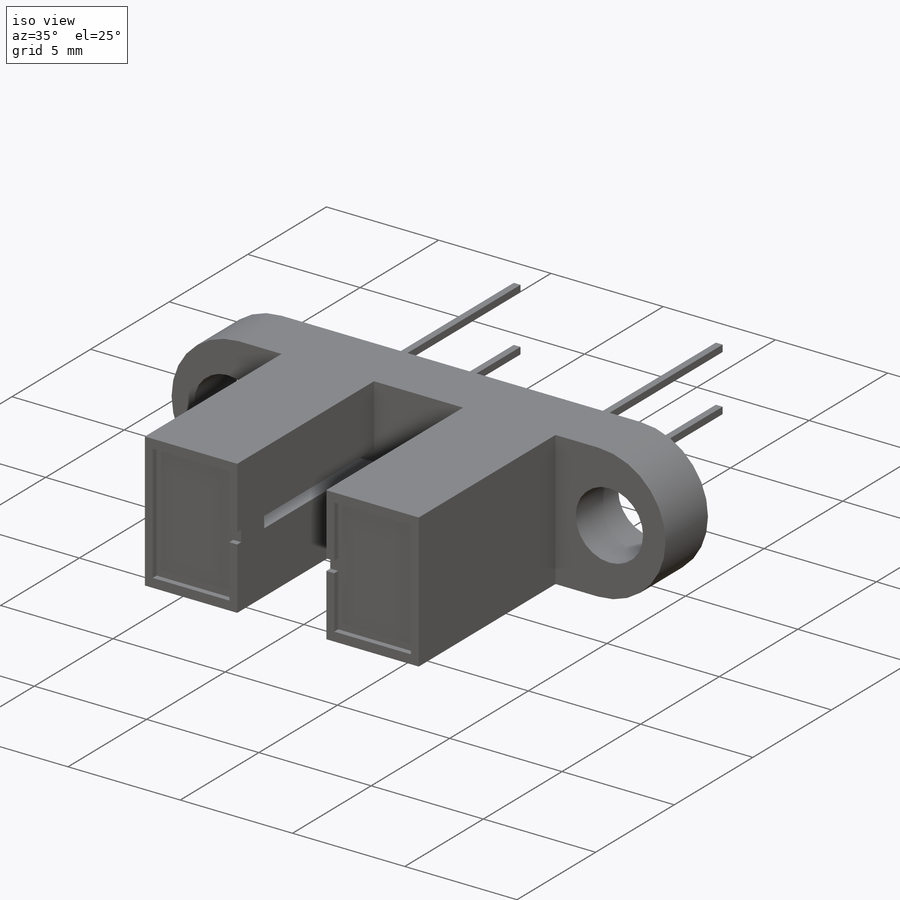
[diagram: iso view]
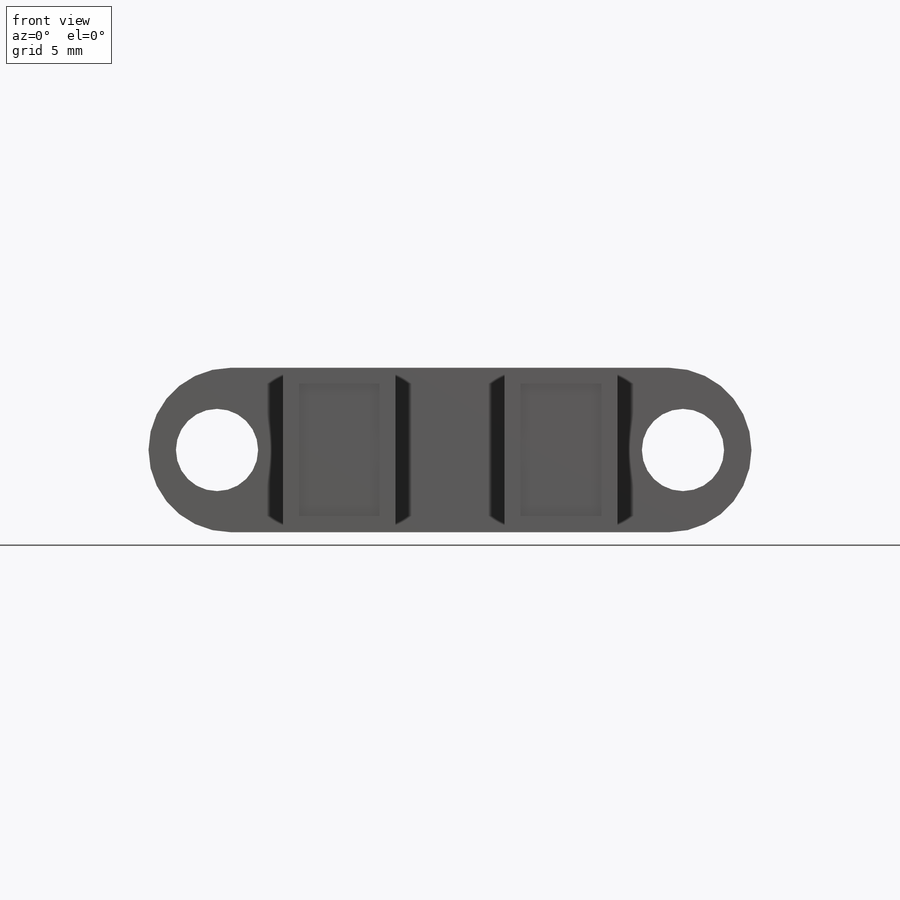
[diagram: front view]
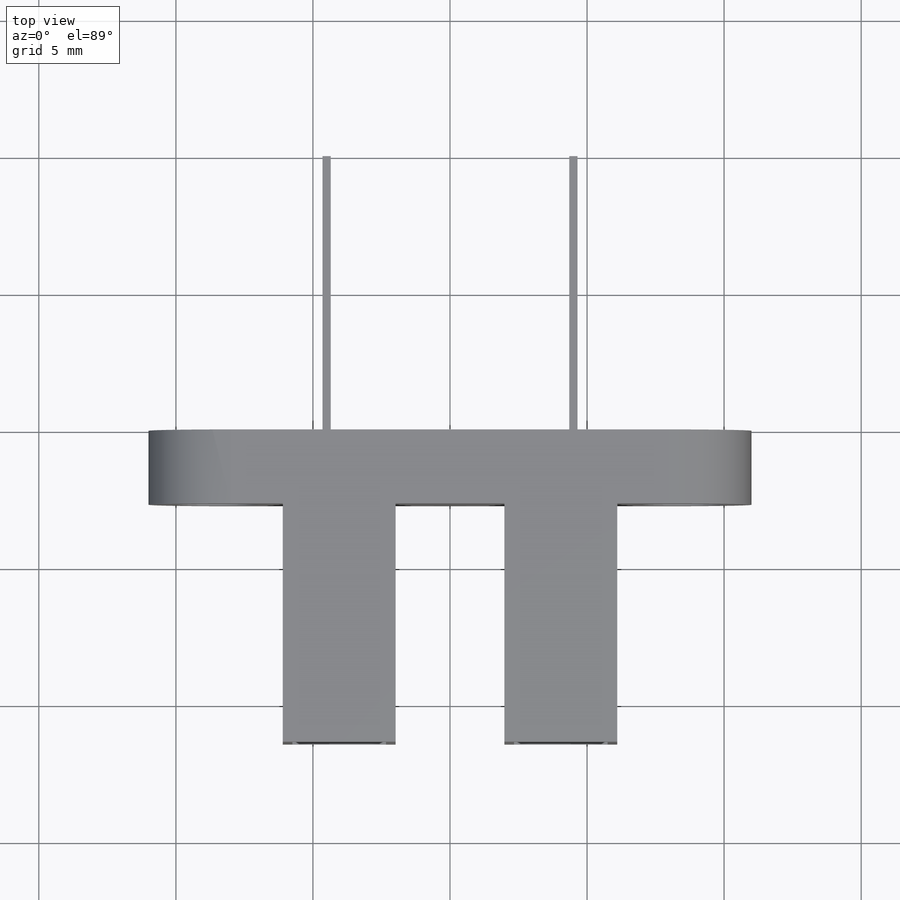
[diagram: top view]
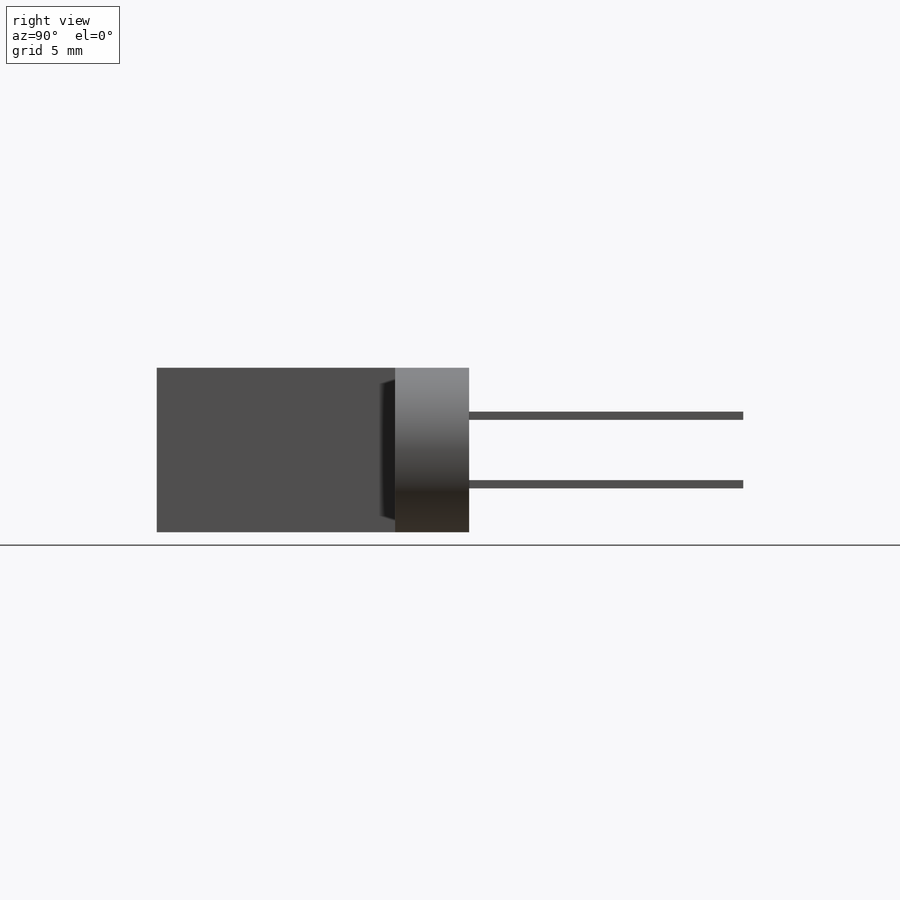
[diagram: right view]
SOLIDWORKS PART (.sldprt)
format: sldprt  version: not decoded by parser v0  size: 324,096 bytes
history: native  units: mm
features: sketch x7, cut_extrude x4, extrude x3, mirror x2, material x1, pattern_linear x1 (+13 scaffold rows collapsed)
feature tree (31):
  scaffold x13  (default folders/planes/origin — collapsed)
  material  "Material <not specified>"
  sketch  "Sketch1"  dims[c1.D2=~4.661538mm c1.D1=17.0mm c2.D2=22.0mm c2.D1=6.0mm]
  extrude  "Boss-Extrude1"  Depth=2.7mm
  sketch  "Sketch2"  dims[D1=3.0mm D2=17.0mm]
  cut_extrude  "Cut-Extrude1"  [1 undecoded]
  sketch  "Sketch3"  dims[c1.D1=4.0mm c1.D2=12.2mm c2.D1=~3.96875mm]
  extrude  "Boss-Extrude2"  Depth=8.7mm
  sketch  "Sketch4"  dims[D1=3.0mm D2=12.0mm]
  cut_extrude  "Cut-Extrude2"  Depth=2mm
  sketch  "Sketch5"  dims[c1.D1=0.4mm c1.D2=5.2mm c1.D3=5.2mm c2.D2=0.35mm c2.D3=0.35mm c2.D4=0.4mm c2.D5=0.5mm c2.D1=0.4mm]
  cut_extrude  "Cut-Extrude3"  Depth=0.25mm
  mirror  "Mirror1"
  sketch  "Sketch6"  dims[D1=0.3mm D2=4.5mm D3=1.25mm]
  extrude  "Boss-Extrude3"  Depth=12mm
  pattern_linear  "LPattern1"  Count1=2 Count2=2 Spacing1=2.5mm Spacing2=9mm
  sketch  "Sketch7"  dims[D1=1.72mm D2=0.5mm]
  cut_extrude  "Cut-Extrude4"  Depth=1mm
  mirror  "Mirror2"
decode coverage: 14 of 17 modeling features carry decoded parameters
note: ~ marks probable driven/reference dimensions
note: 1 parameter value undecoded
note: suppression state not decoded; provenance and decode notes live in map.json
